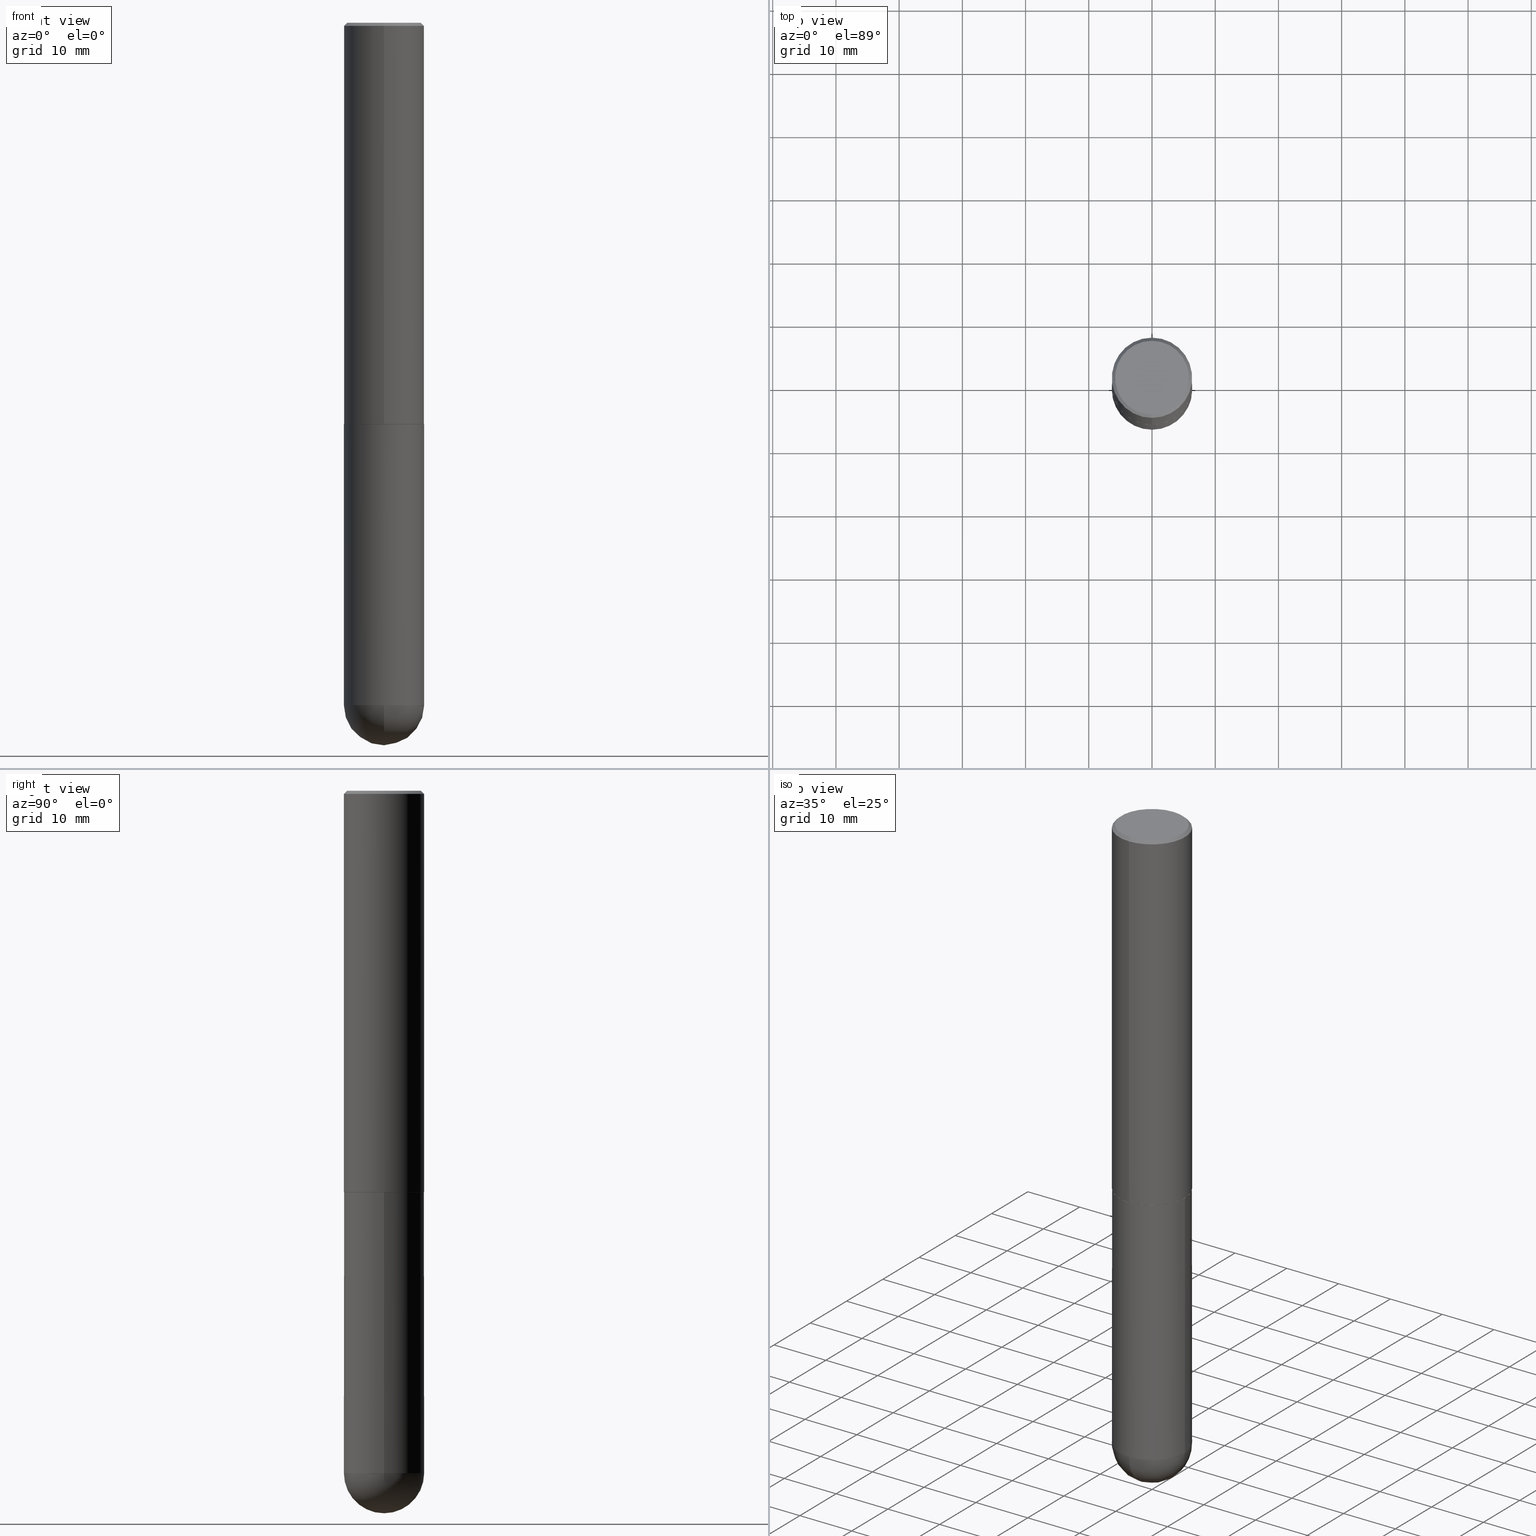
[diagram: canonical four-view strip — front | top / right | iso, engineering-drawing reading convention]
A machine part, canonical four-view strip (front | top / right | iso — engineering-drawing reading convention). The complete STEP part file that produces these views, byte-faithful:
ISO-10303-21;
HEADER;
FILE_DESCRIPTION (( 'STEP AP203' ),
    '1' );
FILE_NAME ('31796.STEP',
    '2024-02-21T16:57:35',
    ( '' ),
    ( '' ),
    'SwSTEP 2.0',
    'SolidWorks 2023',
    '' );
FILE_SCHEMA (( 'CONFIG_CONTROL_DESIGN' ));
ENDSEC;

DATA;
#1 = DIRECTION ( 'NONE',  ( -6.982962677686265922E-15, -1.000000000000000000, 3.490866408787436498E-15 ) ) ;
#2 = FACE_OUTER_BOUND ( 'NONE', #339, .T. ) ;
#3 = DIRECTION ( 'NONE',  ( -2.445898209547976618E-29, 3.490866408787436892E-15, 1.000000000000000000 ) ) ;
#4 = CARTESIAN_POINT ( 'NONE',  ( 1.039324242628683054E-28, -1.483879569008337040E-14, -4.250000000000000000 ) ) ;
#5 = AXIS2_PLACEMENT_3D ( 'NONE', #21, #3, #251 ) ;
#6 = DIRECTION ( 'NONE',  ( 6.982962677686266711E-15, 1.000000000000000000, 0.000000000000000000 ) ) ;
#7 = DIRECTION ( 'NONE',  ( -2.445898209547976618E-29, 3.490866408787436892E-15, 1.000000000000000000 ) ) ;
#8 = ORIENTED_EDGE ( 'NONE', *, *, #276, .F. ) ;
#9 = ADVANCED_FACE ( 'NONE', ( #2 ), #11, .T. ) ;
#10 = CARTESIAN_POINT ( 'NONE',  ( 0.000000000000000000, 0.000000000000000000, 0.000000000000000000 ) ) ;
#11 = CONICAL_SURFACE ( 'NONE', #315, 0.2500000000000000000, 0.7853981633974480570 ) ;
#12 =( CONVERSION_BASED_UNIT ( 'INCH', #274 ) LENGTH_UNIT ( ) NAMED_UNIT ( #70 ) );
#13 = DIRECTION ( 'NONE',  ( -6.982962677686265133E-15, -1.000000000000000000, 4.388510833195603583E-15 ) ) ;
#14 = ORIENTED_EDGE ( 'NONE', *, *, #332, .T. ) ;
#15 = CARTESIAN_POINT ( 'NONE',  ( 1.039324242628683054E-28, -1.483879569008337040E-14, -4.250000000000000000 ) ) ;
#16 = ORIENTED_EDGE ( 'NONE', *, *, #366, .F. ) ;
#17 = AXIS2_PLACEMENT_3D ( 'NONE', #225, #262, #124 ) ;
#18 = EDGE_LOOP ( 'NONE', ( #338, #402, #406, #307 ) ) ;
#19 = ORIENTED_EDGE ( 'NONE', *, *, #37, .T. ) ;
#20 = EDGE_CURVE ( 'NONE', #41, #278, #381, .T. ) ;
#21 = CARTESIAN_POINT ( 'NONE',  ( 4.891796419095966548E-31, -6.981732817574893210E-17, -0.02000000000000005593 ) ) ;
#22 = PERSON_AND_ORGANIZATION ( #61, #72 ) ;
#23 = VECTOR ( 'NONE', #367, 39.37007874015748143 ) ;
#24 = CC_DESIGN_APPROVAL ( #364, ( #326 ) ) ;
#25 = CARTESIAN_POINT ( 'NONE',  ( 6.113672015462842613E-29, -8.728703347107864943E-15, -2.500000000000000000 ) ) ;
#26 = COORDINATED_UNIVERSAL_TIME_OFFSET ( 5, 0, .BEHIND. ) ;
#27 = EDGE_CURVE ( 'NONE', #371, #387, #277, .T. ) ;
#28 = DIRECTION ( 'NONE',  ( -1.000000000000000000, 6.982962677686265922E-15, -4.883557194083113462E-29 ) ) ;
#29 = PERSON_AND_ORGANIZATION ( #61, #72 ) ;
#30 = ADVANCED_FACE ( 'NONE', ( #286 ), #287, .T. ) ;
#31 = VERTEX_POINT ( 'NONE', #181 ) ;
#32 = FACE_OUTER_BOUND ( 'NONE', #82, .T. ) ;
#33 = ORIENTED_EDGE ( 'NONE', *, *, #194, .F. ) ;
#34 = CARTESIAN_POINT ( 'NONE',  ( 1.745740669421669032E-15, 0.2499999999999849842, -4.250000000000001776 ) ) ;
#35 = ORIENTED_EDGE ( 'NONE', *, *, #229, .F. ) ;
#36 = LINE ( 'NONE', #206, #23 ) ;
#37 = EDGE_CURVE ( 'NONE', #52, #41, #57, .T. ) ;
#38 = PLANE ( 'NONE',  #382 ) ;
#39 = AXIS2_PLACEMENT_3D ( 'NONE', #333, #269, #6 ) ;
#40 = FACE_OUTER_BOUND ( 'NONE', #18, .T. ) ;
#41 = VERTEX_POINT ( 'NONE', #207 ) ;
#42 = CYLINDRICAL_SURFACE ( 'NONE', #282, 0.2500000000000000000 ) ;
#43 = CC_DESIGN_PERSON_AND_ORGANIZATION_ASSIGNMENT ( #261, #324, ( #102 ) ) ;
#44 = FACE_OUTER_BOUND ( 'NONE', #374, .T. ) ;
#45 = CIRCLE ( 'NONE', #101, 0.2500000000000000000 ) ;
#46 = ADVANCED_FACE ( 'NONE', ( #176 ), #64, .T. ) ;
#47 = ORIENTED_EDGE ( 'NONE', *, *, #241, .F. ) ;
#48 = ADVANCED_FACE ( 'NONE', ( #129 ), #157, .T. ) ;
#49 = ORIENTED_EDGE ( 'NONE', *, *, #84, .T. ) ;
#50 = DIRECTION ( 'NONE',  ( 2.445898209547976618E-29, -3.490866408787436892E-15, -1.000000000000000000 ) ) ;
#51 = EDGE_LOOP ( 'NONE', ( #285, #317 ) ) ;
#52 = VERTEX_POINT ( 'NONE', #34 ) ;
#53 = DIRECTION ( 'NONE',  ( -2.445468806185136597E-29, 3.491481338843145583E-15, 1.000000000000000000 ) ) ;
#54 = PERSON_AND_ORGANIZATION ( #61, #72 ) ;
#55 = DIRECTION ( 'NONE',  ( 1.000000000000000000, -6.982962677686266711E-15, 4.876176775795935793E-29 ) ) ;
#56 = DATE_TIME_ROLE ( 'classification_date' ) ;
#57 = CIRCLE ( 'NONE', #66, 0.2500000000000000000 ) ;
#58 = LOCAL_TIME ( 11, 57, 35.00000000000000000, #319 ) ;
#59 = FACE_OUTER_BOUND ( 'NONE', #51, .T. ) ;
#60 = SHAPE_DEFINITION_REPRESENTATION ( #349, #125 ) ;
#61 = PERSON ( 'UNSPECIFIED', 'UNSPECIFIED', 'UNSPECIFIED', ('UNSPECIFIED'), ('UNSPECIFIED'), ('UNSPECIFIED') ) ;
#62 = LINE ( 'NONE', #86, #208 ) ;
#63 = CALENDAR_DATE ( 2024, 21, 2 ) ;
#64 = CYLINDRICAL_SURFACE ( 'NONE', #250, 0.2500000000000000000 ) ;
#65 = PERSON_AND_ORGANIZATION ( #61, #72 ) ;
#66 = AXIS2_PLACEMENT_3D ( 'NONE', #343, #369, #77 ) ;
#67 = FACE_OUTER_BOUND ( 'NONE', #76, .T. ) ;
#68 = DIRECTION ( 'NONE',  ( -1.000000000000000000, 6.982962677686265922E-15, -4.876176775795935793E-29 ) ) ;
#69 = DIRECTION ( 'NONE',  ( -2.445468806185136597E-29, 3.491481338843145583E-15, 1.000000000000000000 ) ) ;
#70 = DIMENSIONAL_EXPONENTS ( 1.000000000000000000, 0.000000000000000000, 0.000000000000000000, 0.000000000000000000, 0.000000000000000000, 0.000000000000000000, 0.000000000000000000 ) ;
#71 = AXIS2_PLACEMENT_3D ( 'NONE', #158, #162, #350 ) ;
#72 = ORGANIZATION ( 'UNSPECIFIED', 'UNSPECIFIED', '' ) ;
#73 = FACE_OUTER_BOUND ( 'NONE', #159, .T. ) ;
#74 = EDGE_LOOP ( 'NONE', ( #372, #341, #300, #401, #35 ) ) ;
#75 = DIRECTION ( 'NONE',  ( -2.445468806185136597E-29, 3.491481338843145583E-15, 1.000000000000000000 ) ) ;
#76 = EDGE_LOOP ( 'NONE', ( #197, #293, #314, #148 ) ) ;
#77 = DIRECTION ( 'NONE',  ( 1.000000000000000000, -6.982962677686270655E-15, 0.000000000000000000 ) ) ;
#78 = DIRECTION ( 'NONE',  ( -2.445468806185136877E-29, 3.491481338843145188E-15, 1.000000000000000000 ) ) ;
#79 = CIRCLE ( 'NONE', #320, 0.2489999999999999991 ) ;
#80 = VERTEX_POINT ( 'NONE', #352 ) ;
#81 = ORIENTED_EDGE ( 'NONE', *, *, #27, .F. ) ;
#82 = EDGE_LOOP ( 'NONE', ( #400, #14, #214, #33 ) ) ;
#83 = UNCERTAINTY_MEASURE_WITH_UNIT (LENGTH_MEASURE( 1.000000000000000082E-05 ), #12, 'distance_accuracy_value', 'NONE');
#84 = EDGE_CURVE ( 'NONE', #272, #95, #348, .T. ) ;
#85 = CC_DESIGN_APPROVAL ( #265, ( #102 ) ) ;
#86 = CARTESIAN_POINT ( 'NONE',  ( -0.2500000000000000000, 1.776356839400250465E-15, -1.229733772563726445E-29 ) ) ;
#87 = APPROVAL_DATE_TIME ( #163, #265 ) ;
#88 = EDGE_CURVE ( 'NONE', #80, #370, #107, .T. ) ;
#89 = CARTESIAN_POINT ( 'NONE',  ( 6.113672015462842613E-29, -8.728703347107864943E-15, -2.500000000000000000 ) ) ;
#90 = DATE_TIME_ROLE ( 'creation_date' ) ;
#91 = PRODUCT_RELATED_PRODUCT_CATEGORY ( 'detail', '', ( #128 ) ) ;
#92 = CARTESIAN_POINT ( 'NONE',  ( 1.039324242628683054E-28, -1.483879569008337040E-14, -4.250000000000000000 ) ) ;
#93 = APPROVAL_ROLE ( '' ) ;
#94 = AXIS2_PLACEMENT_3D ( 'NONE', #388, #231, #329 ) ;
#95 = VERTEX_POINT ( 'NONE', #160 ) ;
#96 = DIRECTION ( 'NONE',  ( -6.982962677686265922E-15, -1.000000000000000000, 3.490866408787436892E-15 ) ) ;
#97 = DATE_AND_TIME ( #63, #180 ) ;
#98 = DIRECTION ( 'NONE',  ( 2.445898209547976618E-29, -3.490866408787436498E-15, -1.000000000000000000 ) ) ;
#99 = PERSON_AND_ORGANIZATION ( #61, #72 ) ;
#100 = CARTESIAN_POINT ( 'NONE',  ( 1.772804125721511886E-15, 0.2489999999999912561, -2.500000000000001332 ) ) ;
#101 = AXIS2_PLACEMENT_3D ( 'NONE', #4, #69, #203 ) ;
#102 = PRODUCT_DEFINITION_FORMATION_WITH_SPECIFIED_SOURCE ( 'ANY', '', #128, .NOT_KNOWN. ) ;
#103 = CARTESIAN_POINT ( 'NONE',  ( 1.006212264837294429E-28, -1.531297805822341912E-14, -4.250000000000000000 ) ) ;
#104 = CARTESIAN_POINT ( 'NONE',  ( 6.112299625660394820E-29, -8.723675155559807127E-15, -2.499000000000000110 ) ) ;
#105 = DIRECTION ( 'NONE',  ( 6.982962677686265922E-15, 1.000000000000000000, -4.370956789862818783E-15 ) ) ;
#106 = EDGE_CURVE ( 'NONE', #358, #278, #395, .T. ) ;
#107 = CIRCLE ( 'NONE', #5, 0.2500000000000000000 ) ;
#108 = DIRECTION ( 'NONE',  ( -2.445898209547976618E-29, 3.490866408787436498E-15, 1.000000000000000000 ) ) ;
#109 = EDGE_CURVE ( 'NONE', #191, #394, #304, .T. ) ;
#110 = CARTESIAN_POINT ( 'NONE',  ( -1.738757706743818935E-15, -0.2490000000000087421, -2.499999999999999112 ) ) ;
#111 = CARTESIAN_POINT ( 'NONE',  ( 6.114745523869941825E-29, -8.727166021968593019E-15, -2.500000000000000000 ) ) ;
#112 = ORIENTED_EDGE ( 'NONE', *, *, #263, .T. ) ;
#113 = ADVANCED_FACE ( 'NONE', ( #198 ), #222, .F. ) ;
#114 = CARTESIAN_POINT ( 'NONE',  ( 0.2500000000000000000, -1.745740669421566678E-15, 1.219044193948983948E-29 ) ) ;
#115 = DESIGN_CONTEXT ( 'detailed design', #188, 'design' ) ;
#116 = ORIENTED_EDGE ( 'NONE', *, *, #210, .F. ) ;
#117 = CIRCLE ( 'NONE', #71, 0.2500000000000000000 ) ;
#118 = CONICAL_SURFACE ( 'NONE', #94, 0.2500000000000000000, 0.7853981633974480570 ) ;
#119 = VERTEX_POINT ( 'NONE', #375 ) ;
#120 = ORIENTED_EDGE ( 'NONE', *, *, #88, .F. ) ;
#121 = ORIENTED_EDGE ( 'NONE', *, *, #238, .F. ) ;
#122 = VECTOR ( 'NONE', #346, 39.37007874015748143 ) ;
#123 = APPROVAL_STATUS ( 'not_yet_approved' ) ;
#124 = DIRECTION ( 'NONE',  ( -7.105427357601001859E-15, -1.000000000000000000, 0.000000000000000000 ) ) ;
#125 = ADVANCED_BREP_SHAPE_REPRESENTATION ( '31796', ( #281, #409, #337 ), #223 ) ;
#126 = APPLICATION_PROTOCOL_DEFINITION ( 'international standard', 'config_control_design', 1994, #188 ) ;
#127 = ORIENTED_EDGE ( 'NONE', *, *, #210, .T. ) ;
#128 = PRODUCT ( '31796', '31796', '', ( #289 ) ) ;
#129 = FACE_OUTER_BOUND ( 'NONE', #213, .T. ) ;
#130 = DATE_AND_TIME ( #408, #174 ) ;
#131 = CARTESIAN_POINT ( 'NONE',  ( -1.144978846725488387E-45, 1.634151486436903570E-31, 4.681220347829154190E-17 ) ) ;
#132 = CIRCLE ( 'NONE', #311, 0.2500000000000000000 ) ;
#133 = CC_DESIGN_APPROVAL ( #403, ( #154 ) ) ;
#134 = DIRECTION ( 'NONE',  ( -2.445898209547976618E-29, 3.490866408787436892E-15, 1.000000000000000000 ) ) ;
#135 = APPROVAL_DATE_TIME ( #378, #364 ) ;
#136 = ORIENTED_EDGE ( 'NONE', *, *, #312, .T. ) ;
#137 = DIRECTION ( 'NONE',  ( -2.445898209547976618E-29, 3.490866408787436892E-15, 1.000000000000000000 ) ) ;
#138 = CARTESIAN_POINT ( 'NONE',  ( 6.114745523869941825E-29, -8.727166021968593019E-15, -2.500000000000000000 ) ) ;
#139 = CIRCLE ( 'NONE', #39, 0.2500000000000001110 ) ;
#140 = CIRCLE ( 'NONE', #189, 0.2299999999999998990 ) ;
#141 = ADVANCED_FACE ( 'NONE', ( #59 ), #153, .F. ) ;
#142 = LINE ( 'NONE', #143, #360 ) ;
#143 = CARTESIAN_POINT ( 'NONE',  ( -1.745740669421567467E-15, -0.2500000000000001110, 8.727166021968597161E-16 ) ) ;
#144 = ORIENTED_EDGE ( 'NONE', *, *, #340, .T. ) ;
#145 = DIRECTION ( 'NONE',  ( 1.000000000000000000, -6.982962677686266711E-15, 4.876176775795935793E-29 ) ) ;
#146 = AXIS2_PLACEMENT_3D ( 'NONE', #322, #28, #294 ) ;
#147 = AXIS2_PLACEMENT_3D ( 'NONE', #187, #255, #327 ) ;
#148 = ORIENTED_EDGE ( 'NONE', *, *, #37, .F. ) ;
#149 = DIRECTION ( 'NONE',  ( -2.445468806185136597E-29, 3.491481338843145583E-15, 1.000000000000000000 ) ) ;
#150 = ORIENTED_EDGE ( 'NONE', *, *, #312, .F. ) ;
#151 = ORIENTED_EDGE ( 'NONE', *, *, #183, .T. ) ;
#152 = VECTOR ( 'NONE', #170, 39.37007874015748143 ) ;
#153 = PLANE ( 'NONE',  #257 ) ;
#154 = SECURITY_CLASSIFICATION ( '', '', #226 ) ;
#155 = CALENDAR_DATE ( 2024, 21, 2 ) ;
#156 = ORIENTED_EDGE ( 'NONE', *, *, #88, .T. ) ;
#157 = CYLINDRICAL_SURFACE ( 'NONE', #186, 0.2500000000000001110 ) ;
#158 = CARTESIAN_POINT ( 'NONE',  ( 4.891796419095966548E-31, -6.981732817574893210E-17, -0.02000000000000005593 ) ) ;
#159 = EDGE_LOOP ( 'NONE', ( #16, #112, #248, #8 ) ) ;
#160 = CARTESIAN_POINT ( 'NONE',  ( -1.738757706743818935E-15, -0.2490000000000087421, -2.499999999999999112 ) ) ;
#161 = CLOSED_SHELL ( 'NONE', ( #30, #279, #389, #9, #48, #290, #113, #141 ) ) ;
#162 = DIRECTION ( 'NONE',  ( -2.445898209547976618E-29, 3.490866408787436892E-15, 1.000000000000000000 ) ) ;
#163 = DATE_AND_TIME ( #200, #209 ) ;
#164 = FACE_OUTER_BOUND ( 'NONE', #254, .T. ) ;
#165 = EDGE_CURVE ( 'NONE', #41, #119, #62, .T. ) ;
#166 = LINE ( 'NONE', #240, #152 ) ;
#167 = CIRCLE ( 'NONE', #179, 0.2500000000000000000 ) ;
#168 = DIRECTION ( 'NONE',  ( -6.982962677686265922E-15, -1.000000000000000000, 4.370956789862816416E-15 ) ) ;
#169 = EDGE_CURVE ( 'NONE', #370, #80, #117, .T. ) ;
#170 = DIRECTION ( 'NONE',  ( 4.937700262164546464E-15, 0.7071067811865449082, -0.7071067811865501263 ) ) ;
#171 = CC_DESIGN_PERSON_AND_ORGANIZATION_ASSIGNMENT ( #54, #224, ( #102 ) ) ;
#172 = CARTESIAN_POINT ( 'NONE',  ( -1.144978846725488387E-45, 1.634151486436903570E-31, 4.681220347829154190E-17 ) ) ;
#173 = CLOSED_SHELL ( 'NONE', ( #354, #242, #215, #334, #46 ) ) ;
#174 = LOCAL_TIME ( 11, 57, 35.00000000000000000, #26 ) ;
#175 = DIRECTION ( 'NONE',  ( -4.937700262165728178E-15, -0.7071067811867141062, 0.7071067811863809283 ) ) ;
#176 = FACE_OUTER_BOUND ( 'NONE', #74, .T. ) ;
#177 = DIRECTION ( 'NONE',  ( -2.445898209547976618E-29, 3.490866408787436892E-15, 1.000000000000000000 ) ) ;
#178 = VERTEX_POINT ( 'NONE', #217 ) ;
#179 = AXIS2_PLACEMENT_3D ( 'NONE', #25, #323, #410 ) ;
#180 = LOCAL_TIME ( 11, 57, 35.00000000000000000, #376 ) ;
#181 = CARTESIAN_POINT ( 'NONE',  ( -1.646519519465166770E-15, -0.2299999999999998990, 8.497114774994016356E-16 ) ) ;
#182 = ORIENTED_EDGE ( 'NONE', *, *, #276, .T. ) ;
#183 = EDGE_CURVE ( 'NONE', #387, #119, #132, .T. ) ;
#184 = DIRECTION ( 'NONE',  ( 1.000000000000000000, -6.982962677686266711E-15, 0.000000000000000000 ) ) ;
#185 = APPROVAL_STATUS ( 'not_yet_approved' ) ;
#186 = AXIS2_PLACEMENT_3D ( 'NONE', #384, #291, #195 ) ;
#187 = CARTESIAN_POINT ( 'NONE',  ( 6.112299625660394820E-29, -8.723675155559807127E-15, -2.499000000000000110 ) ) ;
#188 = APPLICATION_CONTEXT ( 'configuration controlled 3d designs of mechanical parts and assemblies' ) ;
#189 = AXIS2_PLACEMENT_3D ( 'NONE', #172, #302, #331 ) ;
#190 = PERSON_AND_ORGANIZATION ( #61, #72 ) ;
#191 = VERTEX_POINT ( 'NONE', #379 ) ;
#192 = DIRECTION ( 'NONE',  ( 1.000000000000000000, -6.982962677686270655E-15, 0.000000000000000000 ) ) ;
#193 = APPROVAL_DATE_TIME ( #130, #403 ) ;
#194 = EDGE_CURVE ( 'NONE', #278, #371, #216, .T. ) ;
#195 = DIRECTION ( 'NONE',  ( -6.982962677686266711E-15, -1.000000000000000000, 3.490866408787437287E-15 ) ) ;
#196 = CC_DESIGN_PERSON_AND_ORGANIZATION_ASSIGNMENT ( #99, #405, ( #128 ) ) ;
#197 = ORIENTED_EDGE ( 'NONE', *, *, #332, .F. ) ;
#198 = FACE_OUTER_BOUND ( 'NONE', #212, .T. ) ;
#199 = AXIS2_PLACEMENT_3D ( 'NONE', #344, #298, #1 ) ;
#200 = CALENDAR_DATE ( 2024, 21, 2 ) ;
#201 = CARTESIAN_POINT ( 'NONE',  ( 1.068417942853397052E-28, -1.617054030794486372E-14, -4.500000000000000888 ) ) ;
#202 = CARTESIAN_POINT ( 'NONE',  ( -1.745740669421507316E-15, -0.2500000000000089928, -2.498999999999999222 ) ) ;
#203 = DIRECTION ( 'NONE',  ( 1.000000000000000000, -6.982962677686270655E-15, 0.000000000000000000 ) ) ;
#204 = AXIS2_PLACEMENT_3D ( 'NONE', #383, #134, #252 ) ;
#205 = SPHERICAL_SURFACE ( 'NONE', #399, 0.2500000000000001110 ) ;
#206 = CARTESIAN_POINT ( 'NONE',  ( 1.776356839400251254E-15, 0.2500000000000001110, -8.727166021968597161E-16 ) ) ;
#207 = CARTESIAN_POINT ( 'NONE',  ( -0.2500000000000000000, -1.000739267919536879E-14, -4.250000000000000000 ) ) ;
#208 = VECTOR ( 'NONE', #356, 39.37007874015748143 ) ;
#209 = LOCAL_TIME ( 11, 57, 35.00000000000000000, #357 ) ;
#210 = EDGE_CURVE ( 'NONE', #272, #191, #404, .T. ) ;
#211 = ORIENTED_EDGE ( 'NONE', *, *, #109, .F. ) ;
#212 = EDGE_LOOP ( 'NONE', ( #150, #236 ) ) ;
#213 = EDGE_LOOP ( 'NONE', ( #47, #246, #144, #120 ) ) ;
#214 = ORIENTED_EDGE ( 'NONE', *, *, #297, .F. ) ;
#215 = ADVANCED_FACE ( 'NONE', ( #32 ), #407, .T. ) ;
#216 = CIRCLE ( 'NONE', #239, 0.2500000000000000000 ) ;
#217 = CARTESIAN_POINT ( 'NONE',  ( 1.675911042644703774E-15, 0.2299999999999998990, -7.560870705428186997E-16 ) ) ;
#218 = PERSON_AND_ORGANIZATION_ROLE ( 'classification_officer' ) ;
#219 = CARTESIAN_POINT ( 'NONE',  ( 1.769251412042710396E-15, 0.2489999999999912561, -2.500000000000001332 ) ) ;
#220 = DATE_AND_TIME ( #155, #58 ) ;
#221 = AXIS2_PLACEMENT_3D ( 'NONE', #363, #137, #391 ) ;
#222 = PLANE ( 'NONE',  #199 ) ;
#223 =( GEOMETRIC_REPRESENTATION_CONTEXT ( 3 ) GLOBAL_UNCERTAINTY_ASSIGNED_CONTEXT ( ( #83 ) ) GLOBAL_UNIT_ASSIGNED_CONTEXT ( ( #12, #368, #345 ) ) REPRESENTATION_CONTEXT ( 'NONE', 'WORKASPACE' ) );
#224 = PERSON_AND_ORGANIZATION_ROLE ( 'design_supplier' ) ;
#225 = CARTESIAN_POINT ( 'NONE',  ( 1.006212264837294429E-28, -1.531297805822341912E-14, -4.250000000000000000 ) ) ;
#226 = SECURITY_CLASSIFICATION_LEVEL ( 'unclassified' ) ;
#227 = DIRECTION ( 'NONE',  ( 6.982962677686265922E-15, 1.000000000000000000, -3.490866408787436498E-15 ) ) ;
#228 = PERSON_AND_ORGANIZATION_ROLE ( 'creator' ) ;
#229 = EDGE_CURVE ( 'NONE', #119, #387, #167, .T. ) ;
#230 = CARTESIAN_POINT ( 'NONE',  ( 4.891796419095966548E-31, -6.981732817574893210E-17, -0.02000000000000005593 ) ) ;
#231 = DIRECTION ( 'NONE',  ( 2.445898209547976618E-29, -3.490866408787436892E-15, -1.000000000000000000 ) ) ;
#232 = CONICAL_SURFACE ( 'NONE', #221, 0.2489999999999999991, 0.7853981633976873100 ) ;
#233 = APPROVAL_PERSON_ORGANIZATION ( #29, #265, #93 ) ;
#234 = CYLINDRICAL_SURFACE ( 'NONE', #325, 0.2500000000000001110 ) ;
#235 = DIRECTION ( 'NONE',  ( -4.851104656540962697E-15, -0.7071067811865497932, -0.7071067811865452413 ) ) ;
#236 = ORIENTED_EDGE ( 'NONE', *, *, #84, .F. ) ;
#237 = CARTESIAN_POINT ( 'NONE',  ( -1.715124499442882299E-15, -0.2500000000000000555, -0.01999999999999918510 ) ) ;
#238 = EDGE_CURVE ( 'NONE', #178, #31, #271, .T. ) ;
#239 = AXIS2_PLACEMENT_3D ( 'NONE', #92, #288, #192 ) ;
#240 = CARTESIAN_POINT ( 'NONE',  ( 1.745740669421566875E-15, 0.2499999999999999167, -0.02000000000000092676 ) ) ;
#241 = EDGE_CURVE ( 'NONE', #191, #80, #36, .T. ) ;
#242 = ADVANCED_FACE ( 'NONE', ( #67 ), #205, .T. ) ;
#243 = ORIENTED_EDGE ( 'NONE', *, *, #310, .F. ) ;
#244 = VECTOR ( 'NONE', #78, 39.37007874015748143 ) ;
#245 = APPROVAL_PERSON_ORGANIZATION ( #190, #403, #292 ) ;
#246 = ORIENTED_EDGE ( 'NONE', *, *, #109, .T. ) ;
#247 = ORIENTED_EDGE ( 'NONE', *, *, #398, .F. ) ;
#248 = ORIENTED_EDGE ( 'NONE', *, *, #169, .T. ) ;
#249 = CC_DESIGN_PERSON_AND_ORGANIZATION_ASSIGNMENT ( #65, #228, ( #326 ) ) ;
#250 = AXIS2_PLACEMENT_3D ( 'NONE', #318, #53, #55 ) ;
#251 = DIRECTION ( 'NONE',  ( -6.982962677686265922E-15, -1.000000000000000000, 3.483106191921935554E-15 ) ) ;
#252 = DIRECTION ( 'NONE',  ( -6.982962677686265133E-15, -1.000000000000000000, 4.388510833195603583E-15 ) ) ;
#253 = PERSON_AND_ORGANIZATION ( #61, #72 ) ;
#254 = EDGE_LOOP ( 'NONE', ( #116, #49, #355, #211 ) ) ;
#255 = DIRECTION ( 'NONE',  ( -2.445898209547976618E-29, 3.490866408787436892E-15, 1.000000000000000000 ) ) ;
#256 = COORDINATED_UNIVERSAL_TIME_OFFSET ( 5, 0, .BEHIND. ) ;
#257 = AXIS2_PLACEMENT_3D ( 'NONE', #377, #98, #227 ) ;
#258 = CC_DESIGN_PERSON_AND_ORGANIZATION_ASSIGNMENT ( #22, #218, ( #154 ) ) ;
#259 = DIRECTION ( 'NONE',  ( -2.445898209547976618E-29, 3.490866408787436892E-15, 1.000000000000000000 ) ) ;
#260 = VECTOR ( 'NONE', #175, 39.37007874015748143 ) ;
#261 = PERSON_AND_ORGANIZATION ( #61, #72 ) ;
#262 = DIRECTION ( 'NONE',  ( -1.000000000000000000, 7.105427357601001070E-15, -4.926315508542082329E-29 ) ) ;
#263 = EDGE_CURVE ( 'NONE', #31, #370, #309, .T. ) ;
#264 = CARTESIAN_POINT ( 'NONE',  ( -1.715124499442882299E-15, -0.2500000000000000555, -0.01999999999999918510 ) ) ;
#265 = APPROVAL ( #123, 'UNSPECIFIED' ) ;
#266 = DIRECTION ( 'NONE',  ( -2.445898209547976618E-29, 3.490866408787436892E-15, 1.000000000000000000 ) ) ;
#267 = AXIS2_PLACEMENT_3D ( 'NONE', #104, #7, #168 ) ;
#268 = CARTESIAN_POINT ( 'NONE',  ( -1.776356839400148307E-15, -0.2500000000000151545, -4.249999999999999112 ) ) ;
#269 = DIRECTION ( 'NONE',  ( 1.000000000000000000, -6.982962677686265922E-15, 4.883557194083112340E-29 ) ) ;
#270 = DIRECTION ( 'NONE',  ( -1.000000000000000000, 6.982962677686265922E-15, -4.883557194083113462E-29 ) ) ;
#271 = CIRCLE ( 'NONE', #411, 0.2299999999999998990 ) ;
#272 = VERTEX_POINT ( 'NONE', #100 ) ;
#273 = DIRECTION ( 'NONE',  ( 1.000000000000000000, -6.982962677686270655E-15, 0.000000000000000000 ) ) ;
#274 = LENGTH_MEASURE_WITH_UNIT ( LENGTH_MEASURE( 0.02539999999999999897 ), #335 );
#275 = ORIENTED_EDGE ( 'NONE', *, *, #165, .T. ) ;
#276 = EDGE_CURVE ( 'NONE', #178, #80, #166, .T. ) ;
#277 = LINE ( 'NONE', #114, #244 ) ;
#278 = VERTEX_POINT ( 'NONE', #268 ) ;
#279 = ADVANCED_FACE ( 'NONE', ( #40 ), #234, .T. ) ;
#280 = AXIS2_PLACEMENT_3D ( 'NONE', #111, #177, #13 ) ;
#281 = MANIFOLD_SOLID_BREP ( 'Body-Move/Copy2[1]', #173 ) ;
#282 = AXIS2_PLACEMENT_3D ( 'NONE', #10, #75, #145 ) ;
#283 = ORIENTED_EDGE ( 'NONE', *, *, #263, .F. ) ;
#284 = ORIENTED_EDGE ( 'NONE', *, *, #229, .T. ) ;
#285 = ORIENTED_EDGE ( 'NONE', *, *, #238, .T. ) ;
#286 = FACE_OUTER_BOUND ( 'NONE', #313, .T. ) ;
#287 = CONICAL_SURFACE ( 'NONE', #280, 0.2489999999999999991, 0.7853981633976873100 ) ;
#288 = DIRECTION ( 'NONE',  ( -2.445468806185136597E-29, 3.491481338843145583E-15, 1.000000000000000000 ) ) ;
#289 = MECHANICAL_CONTEXT ( 'NONE', #380, 'mechanical' ) ;
#290 = ADVANCED_FACE ( 'NONE', ( #164 ), #232, .T. ) ;
#291 = DIRECTION ( 'NONE',  ( -2.445898209547976618E-29, 3.490866408787436892E-15, 1.000000000000000000 ) ) ;
#292 = APPROVAL_ROLE ( '' ) ;
#293 = ORIENTED_EDGE ( 'NONE', *, *, #106, .T. ) ;
#294 = DIRECTION ( 'NONE',  ( 6.982962677686265922E-15, 1.000000000000000000, -4.370956789862818783E-15 ) ) ;
#295 = CARTESIAN_POINT ( 'NONE',  ( 0.000000000000000000, 0.000000000000000000, 0.000000000000000000 ) ) ;
#296 = AXIS2_PLACEMENT_3D ( 'NONE', #15, #149, #273 ) ;
#297 = EDGE_CURVE ( 'NONE', #371, #52, #45, .T. ) ;
#298 = DIRECTION ( 'NONE',  ( -2.445898209547976618E-29, 3.490866408787436498E-15, 1.000000000000000000 ) ) ;
#299 = DIRECTION ( 'NONE',  ( 1.000000000000000000, 0.000000000000000000, 0.000000000000000000 ) ) ;
#300 = ORIENTED_EDGE ( 'NONE', *, *, #194, .T. ) ;
#301 = DIRECTION ( 'NONE',  ( -2.445468806185136597E-29, 3.491481338843145583E-15, 1.000000000000000000 ) ) ;
#302 = DIRECTION ( 'NONE',  ( -2.445898209547976618E-29, 3.490866408787436892E-15, 1.000000000000000000 ) ) ;
#303 = DIRECTION ( 'NONE',  ( -2.445898209547976618E-29, 3.490866408787436892E-15, 1.000000000000000000 ) ) ;
#304 = CIRCLE ( 'NONE', #147, 0.2500000000000002776 ) ;
#305 = CC_DESIGN_SECURITY_CLASSIFICATION ( #154, ( #102 ) ) ;
#306 = LINE ( 'NONE', #110, #260 ) ;
#307 = ORIENTED_EDGE ( 'NONE', *, *, #340, .F. ) ;
#308 = CARTESIAN_POINT ( 'NONE',  ( 1.745740669421627617E-15, 0.2499999999999912570, -2.500000000000001332 ) ) ;
#309 = LINE ( 'NONE', #237, #359 ) ;
#310 = EDGE_CURVE ( 'NONE', #394, #191, #336, .T. ) ;
#311 = AXIS2_PLACEMENT_3D ( 'NONE', #89, #301, #184 ) ;
#312 = EDGE_CURVE ( 'NONE', #95, #272, #79, .T. ) ;
#313 = EDGE_LOOP ( 'NONE', ( #136, #127, #243, #247 ) ) ;
#314 = ORIENTED_EDGE ( 'NONE', *, *, #20, .F. ) ;
#315 = AXIS2_PLACEMENT_3D ( 'NONE', #230, #50, #316 ) ;
#316 = DIRECTION ( 'NONE',  ( 6.982962677686265922E-15, 1.000000000000000000, -3.483106191921935554E-15 ) ) ;
#317 = ORIENTED_EDGE ( 'NONE', *, *, #366, .T. ) ;
#318 = CARTESIAN_POINT ( 'NONE',  ( 0.000000000000000000, 0.000000000000000000, 0.000000000000000000 ) ) ;
#319 = COORDINATED_UNIVERSAL_TIME_OFFSET ( 5, 0, .BEHIND. ) ;
#320 = AXIS2_PLACEMENT_3D ( 'NONE', #138, #266, #330 ) ;
#321 = APPROVAL_STATUS ( 'not_yet_approved' ) ;
#322 = CARTESIAN_POINT ( 'NONE',  ( 1.006212264837294429E-28, -1.531297805822341912E-14, -4.250000000000000000 ) ) ;
#323 = DIRECTION ( 'NONE',  ( -2.445468806185136597E-29, 3.491481338843145583E-15, 1.000000000000000000 ) ) ;
#324 = PERSON_AND_ORGANIZATION_ROLE ( 'creator' ) ;
#325 = AXIS2_PLACEMENT_3D ( 'NONE', #361, #303, #396 ) ;
#326 = PRODUCT_DEFINITION ( 'UNKNOWN', '', #102, #115 ) ;
#327 = DIRECTION ( 'NONE',  ( -6.982962677686265922E-15, -1.000000000000000000, 4.370956789862816416E-15 ) ) ;
#328 = APPROVAL_ROLE ( '' ) ;
#329 = DIRECTION ( 'NONE',  ( 6.982962677686265922E-15, 1.000000000000000000, -3.483106191921935554E-15 ) ) ;
#330 = DIRECTION ( 'NONE',  ( -6.982962677686265133E-15, -1.000000000000000000, 4.388510833195603583E-15 ) ) ;
#331 = DIRECTION ( 'NONE',  ( -6.982962677686265922E-15, -1.000000000000000000, 3.490866408787436892E-15 ) ) ;
#332 = EDGE_CURVE ( 'NONE', #358, #52, #139, .T. ) ;
#333 = CARTESIAN_POINT ( 'NONE',  ( 1.006212264837294429E-28, -1.531297805822341912E-14, -4.250000000000000000 ) ) ;
#334 = ADVANCED_FACE ( 'NONE', ( #392 ), #38, .F. ) ;
#335 =( LENGTH_UNIT ( ) NAMED_UNIT ( * ) SI_UNIT ( $, .METRE. ) );
#336 = CIRCLE ( 'NONE', #267, 0.2500000000000002776 ) ;
#337 = AXIS2_PLACEMENT_3D ( 'NONE', #295, #347, #299 ) ;
#338 = ORIENTED_EDGE ( 'NONE', *, *, #310, .T. ) ;
#339 = EDGE_LOOP ( 'NONE', ( #283, #121, #182, #156 ) ) ;
#340 = EDGE_CURVE ( 'NONE', #394, #370, #142, .T. ) ;
#341 = ORIENTED_EDGE ( 'NONE', *, *, #20, .T. ) ;
#342 = EDGE_LOOP ( 'NONE', ( #151, #284 ) ) ;
#343 = CARTESIAN_POINT ( 'NONE',  ( 1.039324242628683054E-28, -1.483879569008337040E-14, -4.250000000000000000 ) ) ;
#344 = CARTESIAN_POINT ( 'NONE',  ( 6.114745523869941825E-29, -8.727166021968593019E-15, -2.500000000000000000 ) ) ;
#345 =( NAMED_UNIT ( * ) SI_UNIT ( $, .STERADIAN. ) SOLID_ANGLE_UNIT ( ) );
#346 = DIRECTION ( 'NONE',  ( 5.024295867789263036E-15, 0.7071067811867189912, 0.7071067811863760433 ) ) ;
#347 = DIRECTION ( 'NONE',  ( 0.000000000000000000, 0.000000000000000000, 1.000000000000000000 ) ) ;
#348 = CIRCLE ( 'NONE', #204, 0.2489999999999999991 ) ;
#349 = PRODUCT_DEFINITION_SHAPE ( 'NONE', 'NONE',  #326 ) ;
#350 = DIRECTION ( 'NONE',  ( -6.982962677686265922E-15, -1.000000000000000000, 3.483106191921935554E-15 ) ) ;
#351 = ORIENTED_EDGE ( 'NONE', *, *, #183, .F. ) ;
#352 = CARTESIAN_POINT ( 'NONE',  ( 1.745740669421566875E-15, 0.2499999999999999167, -0.02000000000000092676 ) ) ;
#353 = CALENDAR_DATE ( 2024, 21, 2 ) ;
#354 = ADVANCED_FACE ( 'NONE', ( #44 ), #42, .T. ) ;
#355 = ORIENTED_EDGE ( 'NONE', *, *, #398, .T. ) ;
#356 = DIRECTION ( 'NONE',  ( -2.445468806185136877E-29, 3.491481338843145188E-15, 1.000000000000000000 ) ) ;
#357 = COORDINATED_UNIVERSAL_TIME_OFFSET ( 5, 0, .BEHIND. ) ;
#358 = VERTEX_POINT ( 'NONE', #201 ) ;
#359 = VECTOR ( 'NONE', #235, 39.37007874015748143 ) ;
#360 = VECTOR ( 'NONE', #108, 39.37007874015748143 ) ;
#361 = CARTESIAN_POINT ( 'NONE',  ( 0.000000000000000000, 0.000000000000000000, 0.000000000000000000 ) ) ;
#362 = DIRECTION ( 'NONE',  ( 2.438088387897960049E-29, -3.491481338843145188E-15, -1.000000000000000000 ) ) ;
#363 = CARTESIAN_POINT ( 'NONE',  ( 6.114745523869941825E-29, -8.727166021968593019E-15, -2.500000000000000000 ) ) ;
#364 = APPROVAL ( #185, 'UNSPECIFIED' ) ;
#365 = CARTESIAN_POINT ( 'NONE',  ( 0.2500000000000000000, -1.352949018801718751E-14, -4.250000000000000000 ) ) ;
#366 = EDGE_CURVE ( 'NONE', #31, #178, #140, .T. ) ;
#367 = DIRECTION ( 'NONE',  ( -2.445898209547976618E-29, 3.490866408787436498E-15, 1.000000000000000000 ) ) ;
#368 =( NAMED_UNIT ( * ) PLANE_ANGLE_UNIT ( ) SI_UNIT ( $, .RADIAN. ) );
#369 = DIRECTION ( 'NONE',  ( -2.445468806185136597E-29, 3.491481338843145583E-15, 1.000000000000000000 ) ) ;
#370 = VERTEX_POINT ( 'NONE', #264 ) ;
#371 = VERTEX_POINT ( 'NONE', #365 ) ;
#372 = ORIENTED_EDGE ( 'NONE', *, *, #165, .F. ) ;
#373 = CC_DESIGN_DATE_AND_TIME_ASSIGNMENT ( #220, #56, ( #154 ) ) ;
#374 = EDGE_LOOP ( 'NONE', ( #19, #275, #351, #81, #393 ) ) ;
#375 = CARTESIAN_POINT ( 'NONE',  ( -0.2500000000000000000, -1.000739267919536563E-14, -2.500000000000000000 ) ) ;
#376 = COORDINATED_UNIVERSAL_TIME_OFFSET ( 5, 0, .BEHIND. ) ;
#377 = CARTESIAN_POINT ( 'NONE',  ( 1.606081415867840476E-15, 0.2299999999999998990, -7.794931722819644584E-16 ) ) ;
#378 = DATE_AND_TIME ( #353, #412 ) ;
#379 = CARTESIAN_POINT ( 'NONE',  ( 1.776356839400282414E-15, 0.2499999999999915623, -2.499000000000001442 ) ) ;
#380 = APPLICATION_CONTEXT ( 'configuration controlled 3d designs of mechanical parts and assemblies' ) ;
#381 = CIRCLE ( 'NONE', #296, 0.2500000000000000000 ) ;
#382 = AXIS2_PLACEMENT_3D ( 'NONE', #308, #362, #68 ) ;
#383 = CARTESIAN_POINT ( 'NONE',  ( 6.114745523869941825E-29, -8.727166021968593019E-15, -2.500000000000000000 ) ) ;
#384 = CARTESIAN_POINT ( 'NONE',  ( 0.000000000000000000, 0.000000000000000000, 0.000000000000000000 ) ) ;
#385 = APPLICATION_PROTOCOL_DEFINITION ( 'international standard', 'config_control_design', 1994, #380 ) ;
#386 = CC_DESIGN_DATE_AND_TIME_ASSIGNMENT ( #97, #90, ( #326 ) ) ;
#387 = VERTEX_POINT ( 'NONE', #390 ) ;
#388 = CARTESIAN_POINT ( 'NONE',  ( 4.891796419095966548E-31, -6.981732817574893210E-17, -0.02000000000000005593 ) ) ;
#389 = ADVANCED_FACE ( 'NONE', ( #73 ), #118, .T. ) ;
#390 = CARTESIAN_POINT ( 'NONE',  ( 0.2500000000000000000, -1.047444401652943162E-14, -2.500000000000000000 ) ) ;
#391 = DIRECTION ( 'NONE',  ( -6.982962677686265133E-15, -1.000000000000000000, 4.388510833195603583E-15 ) ) ;
#392 = FACE_OUTER_BOUND ( 'NONE', #342, .T. ) ;
#393 = ORIENTED_EDGE ( 'NONE', *, *, #297, .T. ) ;
#394 = VERTEX_POINT ( 'NONE', #202 ) ;
#395 = CIRCLE ( 'NONE', #17, 0.2500000000000001110 ) ;
#396 = DIRECTION ( 'NONE',  ( -6.982962677686266711E-15, -1.000000000000000000, 3.490866408787437287E-15 ) ) ;
#397 = APPROVAL_PERSON_ORGANIZATION ( #253, #364, #328 ) ;
#398 = EDGE_CURVE ( 'NONE', #95, #394, #306, .T. ) ;
#399 = AXIS2_PLACEMENT_3D ( 'NONE', #103, #270, #105 ) ;
#400 = ORIENTED_EDGE ( 'NONE', *, *, #106, .F. ) ;
#401 = ORIENTED_EDGE ( 'NONE', *, *, #27, .T. ) ;
#402 = ORIENTED_EDGE ( 'NONE', *, *, #241, .T. ) ;
#403 = APPROVAL ( #321, 'UNSPECIFIED' ) ;
#404 = LINE ( 'NONE', #219, #122 ) ;
#405 = PERSON_AND_ORGANIZATION_ROLE ( 'design_owner' ) ;
#406 = ORIENTED_EDGE ( 'NONE', *, *, #169, .F. ) ;
#407 = SPHERICAL_SURFACE ( 'NONE', #146, 0.2500000000000001110 ) ;
#408 = CALENDAR_DATE ( 2024, 21, 2 ) ;
#409 = MANIFOLD_SOLID_BREP ( 'Body-Move/Copy2[2]', #161 ) ;
#410 = DIRECTION ( 'NONE',  ( 1.000000000000000000, -6.982962677686266711E-15, 0.000000000000000000 ) ) ;
#411 = AXIS2_PLACEMENT_3D ( 'NONE', #131, #259, #96 ) ;
#412 = LOCAL_TIME ( 11, 57, 35.00000000000000000, #256 ) ;
ENDSEC;
END-ISO-10303-21;
